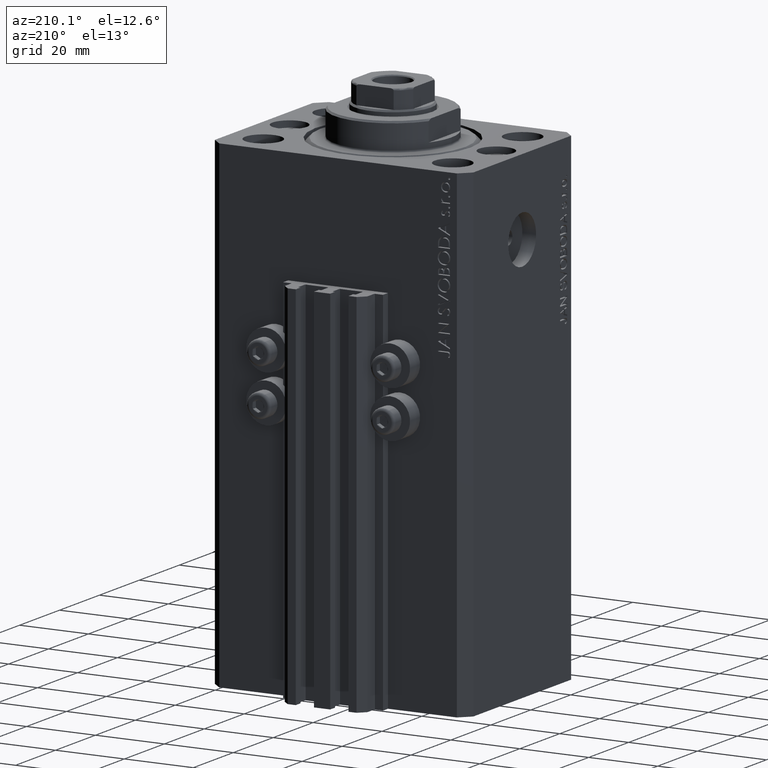
[diagram: clean part render]
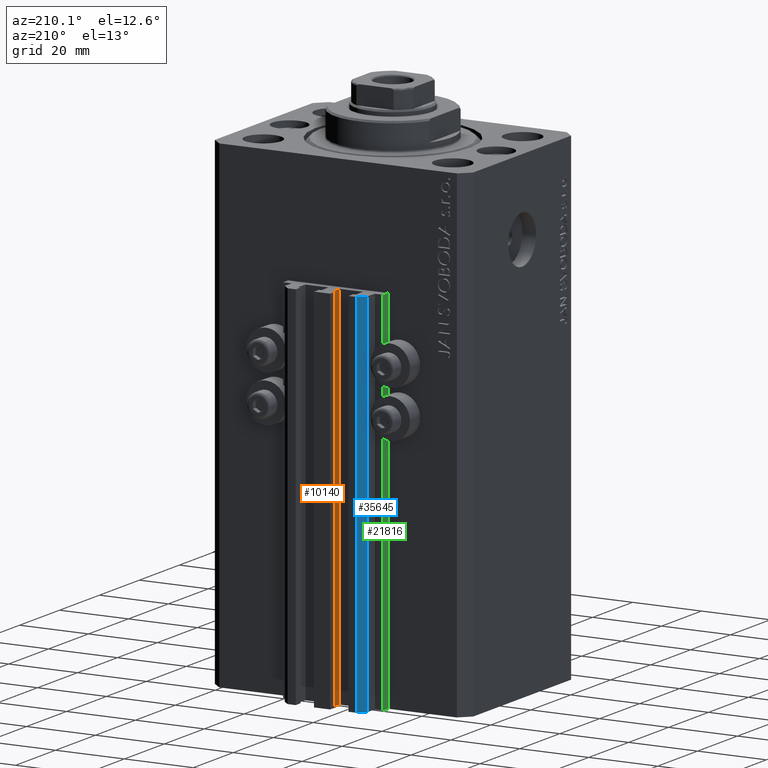
[diagram: same view with three faces highlighted in distinct colors, each labeled with its STEP entity id]
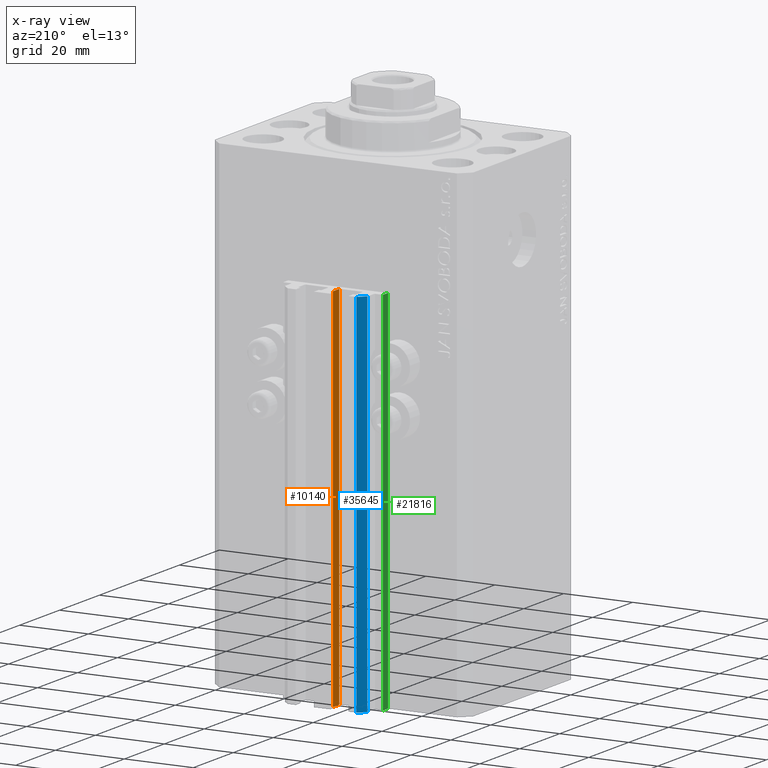
[diagram: x-ray of the same camera — body ghosted, the three highlighted faces saturated]
A machine part, auxiliary view with three faces highlighted in distinct colors.
The next image is the same camera in x-ray (body ghosted, the three faces saturated) — at least one of them is partly hidden behind the body in this view.
Their STEP definitions:

[orange] entity #10140 — the highlighted planar face has unit normal (-1, 0, 0).
#1836 = CARTESIAN_POINT ( 'NONE',  ( -1.600000000000000755, 29.69999999999999929, -140.0000000000000000 ) ) ;
#2393 = VECTOR ( 'NONE', #4192, 1000.000000000000000 ) ;
#2526 = ORIENTED_EDGE ( 'NONE', *, *, #17341, .T. ) ;
#3278 = ORIENTED_EDGE ( 'NONE', *, *, #37367, .F. ) ;
#4192 = DIRECTION ( 'NONE',  ( 0.000000000000000000, 0.000000000000000000, 1.000000000000000000 ) ) ;
#4554 = CARTESIAN_POINT ( 'NONE',  ( -1.600000000000000533, 32.90000000000001279, -33.00000000000000000 ) ) ;
#4580 = CARTESIAN_POINT ( 'NONE',  ( -1.600000000000000755, 29.69999999999999929, -140.0000000000000000 ) ) ;
#5059 = FACE_OUTER_BOUND ( 'NONE', #45272, .T. ) ;
#8495 = AXIS2_PLACEMENT_3D ( 'NONE', #27485, #13166, #23915 ) ;
#8692 = LINE ( 'NONE', #22806, #2393 ) ;
#9341 = PLANE ( 'NONE',  #8495 ) ;
#10140 = ADVANCED_FACE ( 'NONE', ( #5059 ), #9341, .T. ) ;
#10438 = VERTEX_POINT ( 'NONE', #13522 ) ;
#10650 = EDGE_CURVE ( 'NONE', #42964, #10438, #8692, .T. ) ;
#11053 = VECTOR ( 'NONE', #37706, 1000.000000000000000 ) ;
#13166 = DIRECTION ( 'NONE',  ( -1.000000000000000000, 6.776263578034378061E-17, 0.000000000000000000 ) ) ;
#13522 = CARTESIAN_POINT ( 'NONE',  ( -1.599999999999997868, 32.90000000000001279, -33.00000000000000000 ) ) ;
#14035 = CARTESIAN_POINT ( 'NONE',  ( -1.599999999999997868, 32.90000000000001279, -140.0000000000000000 ) ) ;
#17341 = EDGE_CURVE ( 'NONE', #42964, #22675, #37457, .T. ) ;
#20031 = EDGE_CURVE ( 'NONE', #22675, #20774, #42408, .T. ) ;
#20774 = VERTEX_POINT ( 'NONE', #24774 ) ;
#22675 = VERTEX_POINT ( 'NONE', #4580 ) ;
#22806 = CARTESIAN_POINT ( 'NONE',  ( -1.599999999999997868, 32.90000000000001279, -140.0000000000000000 ) ) ;
#23915 = DIRECTION ( 'NONE',  ( -6.776263578034378061E-17, -1.000000000000000000, 0.000000000000000000 ) ) ;
#24774 = CARTESIAN_POINT ( 'NONE',  ( -1.600000000000000755, 29.69999999999999929, -33.00000000000000000 ) ) ;
#27485 = CARTESIAN_POINT ( 'NONE',  ( -1.600000000000000533, 32.90000000000001279, -140.0000000000000000 ) ) ;
#30898 = VECTOR ( 'NONE', #45980, 1000.000000000000000 ) ;
#31201 = DIRECTION ( 'NONE',  ( 0.000000000000000000, 0.000000000000000000, 1.000000000000000000 ) ) ;
#31439 = CARTESIAN_POINT ( 'NONE',  ( -1.600000000000000533, 32.90000000000001279, -140.0000000000000000 ) ) ;
#36397 = ORIENTED_EDGE ( 'NONE', *, *, #20031, .T. ) ;
#37249 = LINE ( 'NONE', #4554, #11053 ) ;
#37367 = EDGE_CURVE ( 'NONE', #10438, #20774, #37249, .T. ) ;
#37457 = LINE ( 'NONE', #31439, #30898 ) ;
#37706 = DIRECTION ( 'NONE',  ( -6.776263578034378061E-17, -1.000000000000000000, 0.000000000000000000 ) ) ;
#42408 = LINE ( 'NONE', #1836, #46147 ) ;
#42964 = VERTEX_POINT ( 'NONE', #14035 ) ;
#45272 = EDGE_LOOP ( 'NONE', ( #3278, #45479, #2526, #36397 ) ) ;
#45479 = ORIENTED_EDGE ( 'NONE', *, *, #10650, .F. ) ;
#45980 = DIRECTION ( 'NONE',  ( -6.776263578034378061E-17, -1.000000000000000000, 0.000000000000000000 ) ) ;
#46147 = VECTOR ( 'NONE', #31201, 1000.000000000000000 ) ;

[blue] entity #35645 — the highlighted planar face has unit normal (-0.7071, 0.7071, 0).
#3471 = DIRECTION ( 'NONE',  ( 0.000000000000000000, 0.000000000000000000, 1.000000000000000000 ) ) ;
#3612 = LINE ( 'NONE', #24878, #31298 ) ;
#3828 = DIRECTION ( 'NONE',  ( 0.000000000000000000, 0.000000000000000000, 1.000000000000000000 ) ) ;
#3913 = ORIENTED_EDGE ( 'NONE', *, *, #11914, .T. ) ;
#4840 = DIRECTION ( 'NONE',  ( -0.7071067811865490160, 0.7071067811865461294, 0.000000000000000000 ) ) ;
#6257 = CARTESIAN_POINT ( 'NONE',  ( -12.00000000000000000, 33.49999999999998579, -140.0000000000000000 ) ) ;
#6588 = CARTESIAN_POINT ( 'NONE',  ( -12.00000000000000000, 33.49999999999998579, -33.00000000000000000 ) ) ;
#7266 = VERTEX_POINT ( 'NONE', #6588 ) ;
#7861 = EDGE_CURVE ( 'NONE', #28227, #22660, #11471, .T. ) ;
#11471 = LINE ( 'NONE', #29859, #37389 ) ;
#11914 = EDGE_CURVE ( 'NONE', #28227, #37151, #3612, .T. ) ;
#12463 = DIRECTION ( 'NONE',  ( -0.7071067811865460184, -0.7071067811865489050, 0.000000000000000000 ) ) ;
#14660 = FACE_OUTER_BOUND ( 'NONE', #17419, .T. ) ;
#15335 = CARTESIAN_POINT ( 'NONE',  ( -10.00000000000000000, 35.50000000000000000, -33.00000000000000000 ) ) ;
#15584 = AXIS2_PLACEMENT_3D ( 'NONE', #18715, #4840, #12463 ) ;
#16868 = ORIENTED_EDGE ( 'NONE', *, *, #23116, .F. ) ;
#17419 = EDGE_LOOP ( 'NONE', ( #16868, #46003, #3913, #38978 ) ) ;
#18715 = CARTESIAN_POINT ( 'NONE',  ( -10.00000000000000000, 35.50000000000000000, -140.0000000000000000 ) ) ;
#18753 = CARTESIAN_POINT ( 'NONE',  ( -12.00000000000000000, 33.49999999999998579, -140.0000000000000000 ) ) ;
#22218 = VECTOR ( 'NONE', #43631, 1000.000000000000227 ) ;
#22660 = VERTEX_POINT ( 'NONE', #15335 ) ;
#23116 = EDGE_CURVE ( 'NONE', #22660, #7266, #32425, .T. ) ;
#24878 = CARTESIAN_POINT ( 'NONE',  ( -10.00000000000000000, 35.50000000000000000, -140.0000000000000000 ) ) ;
#25201 = LINE ( 'NONE', #18753, #37854 ) ;
#28227 = VERTEX_POINT ( 'NONE', #29599 ) ;
#29215 = PLANE ( 'NONE',  #15584 ) ;
#29599 = CARTESIAN_POINT ( 'NONE',  ( -10.00000000000000000, 35.50000000000000000, -140.0000000000000000 ) ) ;
#29859 = CARTESIAN_POINT ( 'NONE',  ( -10.00000000000000000, 35.50000000000000000, -140.0000000000000000 ) ) ;
#31298 = VECTOR ( 'NONE', #43230, 1000.000000000000227 ) ;
#32425 = LINE ( 'NONE', #40051, #22218 ) ;
#35645 = ADVANCED_FACE ( 'NONE', ( #14660 ), #29215, .T. ) ;
#37151 = VERTEX_POINT ( 'NONE', #6257 ) ;
#37389 = VECTOR ( 'NONE', #3828, 1000.000000000000000 ) ;
#37854 = VECTOR ( 'NONE', #3471, 1000.000000000000000 ) ;
#38978 = ORIENTED_EDGE ( 'NONE', *, *, #41304, .T. ) ;
#40051 = CARTESIAN_POINT ( 'NONE',  ( -10.00000000000000000, 35.50000000000000000, -33.00000000000000000 ) ) ;
#41304 = EDGE_CURVE ( 'NONE', #37151, #7266, #25201, .T. ) ;
#43230 = DIRECTION ( 'NONE',  ( -0.7071067811865460184, -0.7071067811865490160, 0.000000000000000000 ) ) ;
#43631 = DIRECTION ( 'NONE',  ( -0.7071067811865460184, -0.7071067811865490160, 0.000000000000000000 ) ) ;
#46003 = ORIENTED_EDGE ( 'NONE', *, *, #7861, .F. ) ;

[green] entity #21816 — the highlighted planar face has unit normal (-1, 0, 0).
#1658 = EDGE_CURVE ( 'NONE', #21552, #16198, #45090, .T. ) ;
#2633 = FACE_OUTER_BOUND ( 'NONE', #33228, .T. ) ;
#3820 = CARTESIAN_POINT ( 'NONE',  ( -14.50000000000000000, 29.99999999999999289, -33.00000000000000000 ) ) ;
#5440 = CARTESIAN_POINT ( 'NONE',  ( -14.50000000000000000, 29.99999999999999289, -33.00000000000000000 ) ) ;
#6153 = VECTOR ( 'NONE', #34105, 1000.000000000000000 ) ;
#6167 = CARTESIAN_POINT ( 'NONE',  ( -14.50000000000000000, 27.50000000000000355, -140.0000000000000000 ) ) ;
#9070 = DIRECTION ( 'NONE',  ( 0.000000000000000000, 0.000000000000000000, 1.000000000000000000 ) ) ;
#12854 = CARTESIAN_POINT ( 'NONE',  ( -14.50000000000000000, 29.99999999999999289, -140.0000000000000000 ) ) ;
#13140 = PLANE ( 'NONE',  #33602 ) ;
#13565 = ORIENTED_EDGE ( 'NONE', *, *, #42850, .F. ) ;
#14670 = VERTEX_POINT ( 'NONE', #46610 ) ;
#14856 = CARTESIAN_POINT ( 'NONE',  ( -14.50000000000000000, 29.99999999999999289, -140.0000000000000000 ) ) ;
#16198 = VERTEX_POINT ( 'NONE', #6167 ) ;
#16431 = VECTOR ( 'NONE', #41487, 1000.000000000000000 ) ;
#18203 = ORIENTED_EDGE ( 'NONE', *, *, #26256, .F. ) ;
#20241 = LINE ( 'NONE', #5440, #16431 ) ;
#21360 = ORIENTED_EDGE ( 'NONE', *, *, #22100, .T. ) ;
#21552 = VERTEX_POINT ( 'NONE', #22264 ) ;
#21816 = ADVANCED_FACE ( 'NONE', ( #2633 ), #13140, .T. ) ;
#22100 = EDGE_CURVE ( 'NONE', #16198, #14670, #22892, .T. ) ;
#22264 = CARTESIAN_POINT ( 'NONE',  ( -14.50000000000000000, 29.99999999999999289, -140.0000000000000000 ) ) ;
#22892 = LINE ( 'NONE', #44605, #6153 ) ;
#23607 = VERTEX_POINT ( 'NONE', #3820 ) ;
#26256 = EDGE_CURVE ( 'NONE', #21552, #23607, #43731, .T. ) ;
#26871 = VECTOR ( 'NONE', #36809, 1000.000000000000000 ) ;
#30988 = ORIENTED_EDGE ( 'NONE', *, *, #1658, .T. ) ;
#33228 = EDGE_LOOP ( 'NONE', ( #13565, #18203, #30988, #21360 ) ) ;
#33602 = AXIS2_PLACEMENT_3D ( 'NONE', #42719, #46074, #9070 ) ;
#34105 = DIRECTION ( 'NONE',  ( 0.000000000000000000, 0.000000000000000000, 1.000000000000000000 ) ) ;
#36809 = DIRECTION ( 'NONE',  ( 0.000000000000000000, 0.000000000000000000, 1.000000000000000000 ) ) ;
#41487 = DIRECTION ( 'NONE',  ( 0.000000000000000000, -1.000000000000000000, 0.000000000000000000 ) ) ;
#42719 = CARTESIAN_POINT ( 'NONE',  ( -14.50000000000000000, 29.99999999999999289, -140.0000000000000000 ) ) ;
#42850 = EDGE_CURVE ( 'NONE', #23607, #14670, #20241, .T. ) ;
#43731 = LINE ( 'NONE', #14856, #26871 ) ;
#44605 = CARTESIAN_POINT ( 'NONE',  ( -14.50000000000000000, 27.50000000000000355, -140.0000000000000000 ) ) ;
#44853 = VECTOR ( 'NONE', #45794, 1000.000000000000000 ) ;
#45090 = LINE ( 'NONE', #12854, #44853 ) ;
#45794 = DIRECTION ( 'NONE',  ( 0.000000000000000000, -1.000000000000000000, 0.000000000000000000 ) ) ;
#46074 = DIRECTION ( 'NONE',  ( -1.000000000000000000, 0.000000000000000000, 0.000000000000000000 ) ) ;
#46610 = CARTESIAN_POINT ( 'NONE',  ( -14.50000000000000000, 27.50000000000000355, -33.00000000000000000 ) ) ;